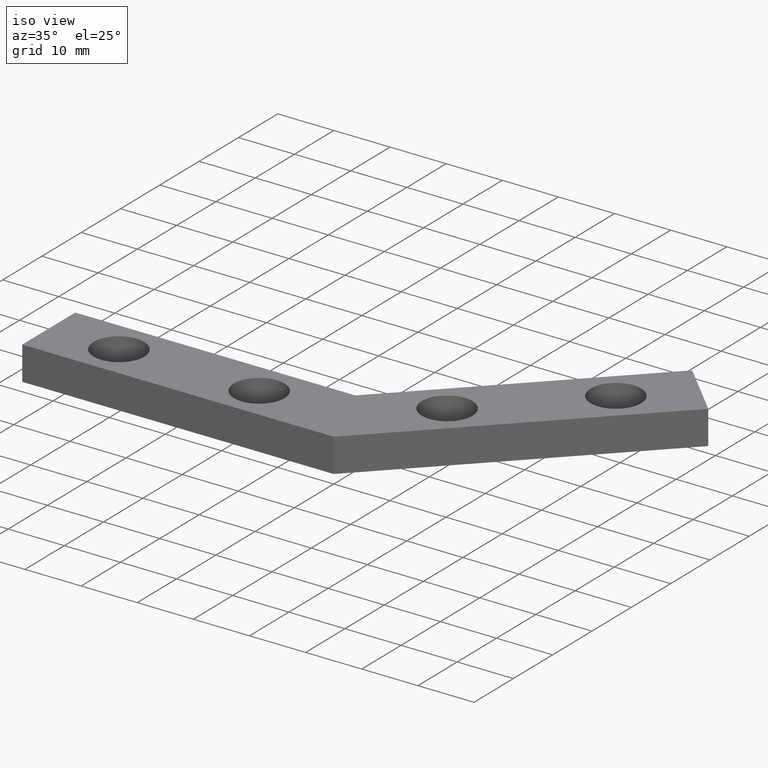
[diagram: clean part render]
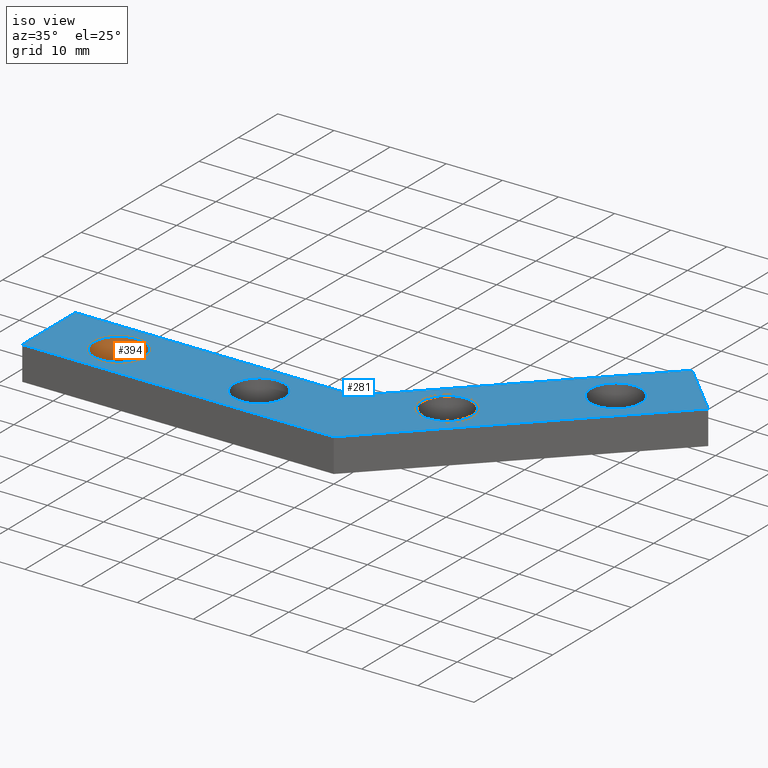
[diagram: same view with the hole feature highlighted: cylindrical wall and planar end face, labeled with their STEP entity ids]
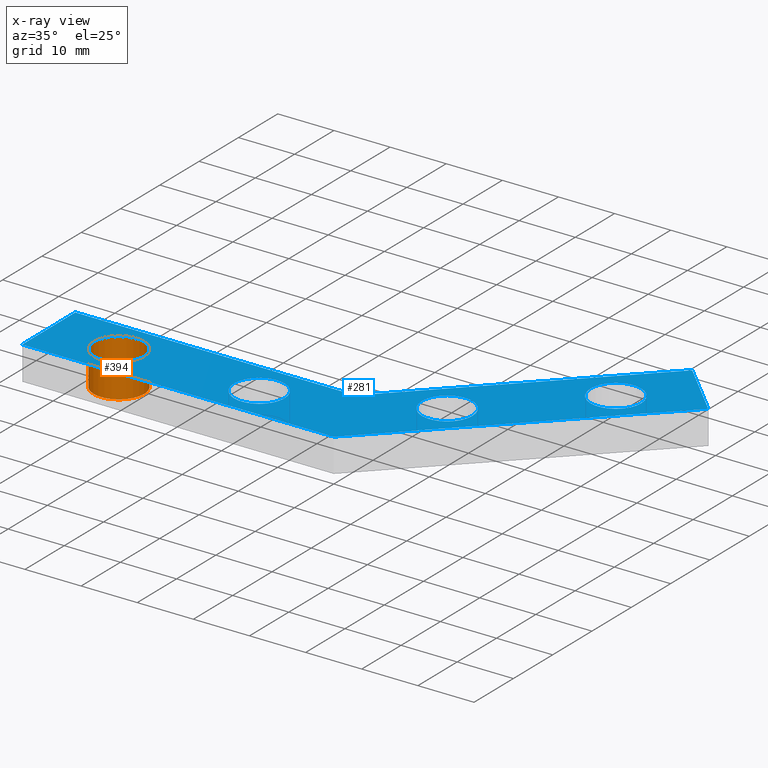
[diagram: x-ray of the same camera — body ghosted, the hole faces saturated]
A machine part, iso view. The highlighted faces form one hole feature of diameter 9 mm: the cylindrical wall (entity #394, orange) and its adjacent planar end face (entity #281, blue) — they share a circular edge in the B-rep.
The next image is the same camera in x-ray (body ghosted, the hole faces saturated) — the bore reads through the body.
Wall:
#201=CARTESIAN_POINT('',(-47.500028999828373,6.749999999973170,6.0));
#202=VERTEX_POINT('',#201);
#203=CARTESIAN_POINT('',(-38.500028999828373,6.749999999973170,6.0));
#204=VERTEX_POINT('',#203);
#205=CARTESIAN_POINT('',(-43.000028999828373,6.749999999973170,6.0));
#206=DIRECTION('',(0.0,0.0,1.0));
#207=DIRECTION('',(1.0,0.0,0.0));
#208=AXIS2_PLACEMENT_3D('',#205,#206,#207);
#209=CIRCLE('',#208,4.500000000000000);
#210=EDGE_CURVE('',#202,#204,#209,.T.);
#212=CARTESIAN_POINT('',(-43.000028999828373,6.749999999973170,6.0));
#213=DIRECTION('',(0.0,0.0,1.0));
#214=DIRECTION('',(1.0,0.0,0.0));
#215=AXIS2_PLACEMENT_3D('',#212,#213,#214);
#216=CIRCLE('',#215,4.500000000000000);
#217=EDGE_CURVE('',#204,#202,#216,.T.);
#295=CARTESIAN_POINT('',(-47.500028999828373,6.749999999973170,0.0));
#296=VERTEX_POINT('',#295);
#297=CARTESIAN_POINT('',(-38.500028999828373,6.749999999973170,0.0));
#298=VERTEX_POINT('',#297);
#299=CARTESIAN_POINT('',(-43.000028999828373,6.749999999973170,0.0));
#300=DIRECTION('',(0.0,0.0,-1.0));
#301=DIRECTION('',(1.0,0.0,0.0));
#302=AXIS2_PLACEMENT_3D('',#299,#300,#301);
#303=CIRCLE('',#302,4.500000000000000);
#304=EDGE_CURVE('',#296,#298,#303,.T.);
#306=CARTESIAN_POINT('',(-43.000028999828373,6.749999999973170,0.0));
#307=DIRECTION('',(0.0,0.0,-1.0));
#308=DIRECTION('',(1.0,0.0,0.0));
#309=AXIS2_PLACEMENT_3D('',#306,#307,#308);
#310=CIRCLE('',#309,4.500000000000000);
#311=EDGE_CURVE('',#298,#296,#310,.T.);
#376=CARTESIAN_POINT('',(-43.000028999828373,6.749999999973170,6.0));
#377=DIRECTION('',(0.0,0.0,1.0));
#378=DIRECTION('',(1.0,0.0,0.0));
#379=AXIS2_PLACEMENT_3D('',#376,#377,#378);
#380=CYLINDRICAL_SURFACE('',#379,4.500000000000000);
#381=CARTESIAN_POINT('',(-38.500028999828373,6.749999999973170,6.0));
#382=DIRECTION('',(0.0,0.0,-1.0));
#383=VECTOR('',#382,6.0);
#384=LINE('',#381,#383);
#385=EDGE_CURVE('',#204,#298,#384,.T.);
#386=ORIENTED_EDGE('',*,*,#385,.T.);
#387=ORIENTED_EDGE('',*,*,#311,.T.);
#388=ORIENTED_EDGE('',*,*,#304,.T.);
#389=ORIENTED_EDGE('',*,*,#385,.F.);
#390=ORIENTED_EDGE('',*,*,#217,.T.);
#391=ORIENTED_EDGE('',*,*,#210,.T.);
#392=EDGE_LOOP('',(#386,#387,#388,#389,#390,#391));
#393=FACE_OUTER_BOUND('',#392,.T.);
#394=ADVANCED_FACE('',(#393),#380,.F.);
End face:
#7=CARTESIAN_POINT('',(-55.500028999778351,0.0,6.0));
#8=VERTEX_POINT('',#7);
#25=CARTESIAN_POINT('',(0.0,0.0,6.0));
#26=VERTEX_POINT('',#25);
#33=CARTESIAN_POINT('',(-55.500028999778351,0.0,6.0));
#34=DIRECTION('',(1.0,0.0,0.0));
#35=VECTOR('',#34,55.500028999778351);
#36=LINE('',#33,#35);
#37=EDGE_CURVE('',#8,#26,#36,.T.);
#56=CARTESIAN_POINT('',(39.244425999842861,39.244425999842861,6.0));
#57=VERTEX_POINT('',#56);
#64=CARTESIAN_POINT('',(0.0,0.0,6.0));
#65=DIRECTION('',(0.707106781186548,0.707106781186548,0.0));
#66=VECTOR('',#65,55.499999496525085);
#67=LINE('',#64,#66);
#68=EDGE_CURVE('',#26,#57,#67,.T.);
#87=CARTESIAN_POINT('',(29.698484999881202,48.790367999804857,6.0));
#88=VERTEX_POINT('',#87);
#95=CARTESIAN_POINT('',(39.244425999842861,39.244425999842861,6.0));
#96=DIRECTION('',(-0.707106744149497,0.707106818223596,0.0));
#97=VECTOR('',#96,13.499999934866201);
#98=LINE('',#95,#97);
#99=EDGE_CURVE('',#57,#88,#98,.T.);
#118=CARTESIAN_POINT('',(-5.591882999977770,13.499999999945885,6.0));
#119=VERTEX_POINT('',#118);
#126=CARTESIAN_POINT('',(29.698484999881202,48.790367999804857,6.0));
#127=DIRECTION('',(-0.707106781186548,-0.707106781186548,0.0));
#128=VECTOR('',#127,49.908117046538031);
#129=LINE('',#126,#128);
#130=EDGE_CURVE('',#88,#119,#129,.T.);
#149=CARTESIAN_POINT('',(-55.500028999778351,13.499999999945885,6.0));
#150=VERTEX_POINT('',#149);
#157=CARTESIAN_POINT('',(-5.591882999977770,13.499999999945885,6.0));
#158=DIRECTION('',(-1.0,0.0,0.0));
#159=VECTOR('',#158,49.908145999800581);
#160=LINE('',#157,#159);
#161=EDGE_CURVE('',#119,#150,#160,.T.);
#179=CARTESIAN_POINT('',(-55.500028999778351,13.499999999945885,6.0));
#180=DIRECTION('',(0.0,-1.0,0.0));
#181=VECTOR('',#180,13.499999999945885);
#182=LINE('',#179,#181);
#183=EDGE_CURVE('',#150,#8,#182,.T.);
#188=CARTESIAN_POINT('',(-64.974479231256737,-4.879041531728490,6.0));
#189=DIRECTION('',(0.0,0.0,1.0));
#190=DIRECTION('',(1.0,0.0,0.0));
#191=AXIS2_PLACEMENT_3D('',#188,#189,#190);
#192=PLANE('',#191);
#193=ORIENTED_EDGE('',*,*,#37,.T.);
#194=ORIENTED_EDGE('',*,*,#68,.T.);
#195=ORIENTED_EDGE('',*,*,#99,.T.);
#196=ORIENTED_EDGE('',*,*,#130,.T.);
#197=ORIENTED_EDGE('',*,*,#161,.T.);
#198=ORIENTED_EDGE('',*,*,#183,.T.);
#199=EDGE_LOOP('',(#193,#194,#195,#196,#197,#198));
#200=FACE_OUTER_BOUND('',#199,.T.);
#201=CARTESIAN_POINT('',(-47.500028999828373,6.749999999973170,6.0));
#202=VERTEX_POINT('',#201);
#203=CARTESIAN_POINT('',(-38.500028999828373,6.749999999973170,6.0));
#204=VERTEX_POINT('',#203);
#205=CARTESIAN_POINT('',(-43.000028999828373,6.749999999973170,6.0));
#206=DIRECTION('',(0.0,0.0,1.0));
#207=DIRECTION('',(1.0,0.0,0.0));
#208=AXIS2_PLACEMENT_3D('',#205,#206,#207);
#209=CIRCLE('',#208,4.500000000000000);
#210=EDGE_CURVE('',#202,#204,#209,.T.);
#211=ORIENTED_EDGE('',*,*,#210,.F.);
#212=CARTESIAN_POINT('',(-43.000028999828373,6.749999999973170,6.0));
#213=DIRECTION('',(0.0,0.0,1.0));
#214=DIRECTION('',(1.0,0.0,0.0));
#215=AXIS2_PLACEMENT_3D('',#212,#213,#214);
#216=CIRCLE('',#215,4.500000000000000);
#217=EDGE_CURVE('',#204,#202,#216,.T.);
#218=ORIENTED_EDGE('',*,*,#217,.F.);
#219=EDGE_LOOP('',(#211,#218));
#220=FACE_BOUND('',#219,.T.);
#221=CARTESIAN_POINT('',(-22.500028999928418,6.749999999973170,6.0));
#222=VERTEX_POINT('',#221);
#223=CARTESIAN_POINT('',(-13.500028999928418,6.749999999973170,6.0));
#224=VERTEX_POINT('',#223);
#225=CARTESIAN_POINT('',(-18.000028999928418,6.749999999973170,6.0));
#226=DIRECTION('',(0.0,0.0,1.0));
#227=DIRECTION('',(1.0,0.0,0.0));
#228=AXIS2_PLACEMENT_3D('',#225,#226,#227);
#229=CIRCLE('',#228,4.500000000000000);
#230=EDGE_CURVE('',#222,#224,#229,.T.);
#231=ORIENTED_EDGE('',*,*,#230,.F.);
#232=CARTESIAN_POINT('',(-18.000028999928418,6.749999999973170,6.0));
#233=DIRECTION('',(0.0,0.0,1.0));
#234=DIRECTION('',(1.0,0.0,0.0));
#235=AXIS2_PLACEMENT_3D('',#232,#233,#234);
#236=CIRCLE('',#235,4.500000000000000);
#237=EDGE_CURVE('',#224,#222,#236,.T.);
#238=ORIENTED_EDGE('',*,*,#237,.F.);
#239=EDGE_LOOP('',(#231,#238));
#240=FACE_BOUND('',#239,.T.);
#241=CARTESIAN_POINT('',(3.454950999967878,17.500892999929874,6.0));
#242=VERTEX_POINT('',#241);
#243=CARTESIAN_POINT('',(12.454950999967878,17.500892999929874,6.0));
#244=VERTEX_POINT('',#243);
#245=CARTESIAN_POINT('',(7.954950999967878,17.500892999929874,6.0));
#246=DIRECTION('',(0.0,0.0,1.0));
#247=DIRECTION('',(1.0,0.0,0.0));
#248=AXIS2_PLACEMENT_3D('',#245,#246,#247);
#249=CIRCLE('',#248,4.500000000000000);
#250=EDGE_CURVE('',#242,#244,#249,.T.);
#251=ORIENTED_EDGE('',*,*,#250,.F.);
#252=CARTESIAN_POINT('',(7.954950999967878,17.500892999929874,6.0));
#253=DIRECTION('',(0.0,0.0,1.0));
#254=DIRECTION('',(1.0,0.0,0.0));
#255=AXIS2_PLACEMENT_3D('',#252,#253,#254);
#256=CIRCLE('',#255,4.500000000000000);
#257=EDGE_CURVE('',#244,#242,#256,.T.);
#258=ORIENTED_EDGE('',*,*,#257,.F.);
#259=EDGE_LOOP('',(#251,#258));
#260=FACE_BOUND('',#259,.T.);
#261=CARTESIAN_POINT('',(21.132620999897426,35.178561999859085,6.0));
#262=VERTEX_POINT('',#261);
#263=CARTESIAN_POINT('',(30.132620999897426,35.178561999859085,6.0));
#264=VERTEX_POINT('',#263);
#265=CARTESIAN_POINT('',(25.632620999897426,35.178561999859085,6.0));
#266=DIRECTION('',(0.0,0.0,1.0));
#267=DIRECTION('',(1.0,0.0,0.0));
#268=AXIS2_PLACEMENT_3D('',#265,#266,#267);
#269=CIRCLE('',#268,4.500000000000000);
#270=EDGE_CURVE('',#262,#264,#269,.T.);
#271=ORIENTED_EDGE('',*,*,#270,.F.);
#272=CARTESIAN_POINT('',(25.632620999897426,35.178561999859085,6.0));
#273=DIRECTION('',(0.0,0.0,1.0));
#274=DIRECTION('',(1.0,0.0,0.0));
#275=AXIS2_PLACEMENT_3D('',#272,#273,#274);
#276=CIRCLE('',#275,4.500000000000000);
#277=EDGE_CURVE('',#264,#262,#276,.T.);
#278=ORIENTED_EDGE('',*,*,#277,.F.);
#279=EDGE_LOOP('',(#271,#278));
#280=FACE_BOUND('',#279,.T.);
#281=ADVANCED_FACE('',(#200,#220,#240,#260,#280),#192,.T.);